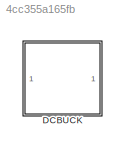
MODEL slx_4cc355a165fb
KIND model
CONFIG AbsTol = auto
CONFIG EnableMultiTasking = off
CONFIG FixedStep = auto
CONFIG MaxStep = auto
CONFIG MinStep = auto
CONFIG RelTol = 1e-3
CONFIG SampleTimeConstraint = Unconstrained
CONFIG SolverName = VariableStepAuto
CONFIG StartTime = 0.0
CONFIG StopTime = 10.0
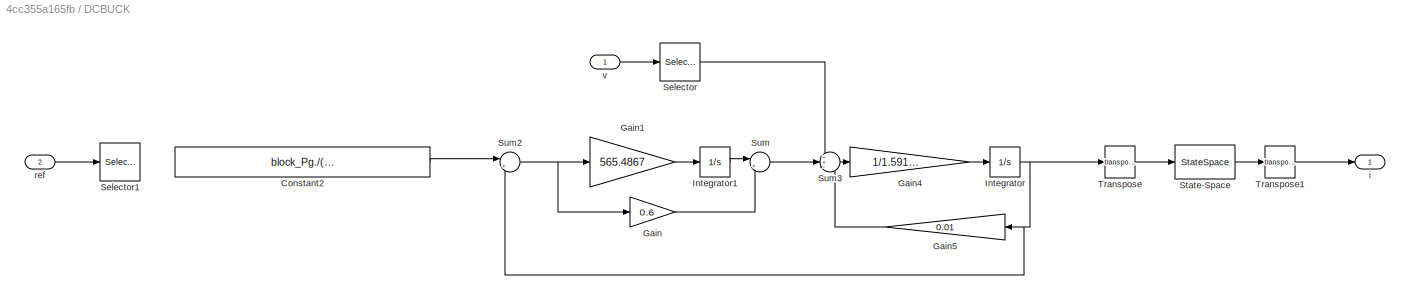
BLOCK [SubSystem] DCBUCK
BLOCK [Constant] DCBUCK/Constant2
  Value = block_Pg./(DC.v(block_buses)*Sb)
  VectorParams1D = off
BLOCK [Gain] DCBUCK/Gain
  Gain = 0.6
BLOCK [Gain] DCBUCK/Gain1
  Gain = 565.4867
BLOCK [Gain] DCBUCK/Gain4
  Gain = 1/1.5915e-04
BLOCK [Gain] DCBUCK/Gain5
  Gain = 0.01
  NameLocation = top
BLOCK [Integrator] DCBUCK/Integrator
  InitialCondition = Grid_DCop_DCBUCK.op.States(1).x'
BLOCK [Integrator] DCBUCK/Integrator1
  InitialCondition = Grid_DCop_DCBUCK.op.States(2).x'
BLOCK [Selector] DCBUCK/Selector
  IndexOptions = Index vector (dialog)
  Indices = block_buses
  InputPortWidth = DC.Nbuses
  OutputSizes = 1
BLOCK [Selector] DCBUCK/Selector1
  Commented = on
  IndexOptions = Index vector (dialog)
  Indices = [1 3]
  InputPortWidth = 3
  OutputSizes = 1
BLOCK [StateSpace] DCBUCK/State-Space
  A = []
  B = []
  C = []
  D = block_toM
  InitialCondition = 0
  ParameterTunability = Optimized
BLOCK [Sum] DCBUCK/Sum
  Inputs = |++
BLOCK [Sum] DCBUCK/Sum2
  Inputs = |+-
BLOCK [Sum] DCBUCK/Sum3
  Inputs = ++-
BLOCK [Math] DCBUCK/Transpose
  Operator = transpose
BLOCK [Math] DCBUCK/Transpose1
  Operator = transpose
BLOCK [Outport] DCBUCK/i
BLOCK [Inport] DCBUCK/ref
  Port = 2
BLOCK [Inport] DCBUCK/v
LINE DCBUCK/Constant2:1 -> DCBUCK/Sum2:1
LINE DCBUCK/Gain1:1 -> DCBUCK/Integrator1:1
LINE DCBUCK/Gain4:1 -> DCBUCK/Integrator:1
LINE DCBUCK/Gain5:1 -> DCBUCK/Sum3:3
LINE DCBUCK/Gain:1 -> DCBUCK/Sum:2
LINE DCBUCK/Integrator1:1 -> DCBUCK/Sum:1
NET DCBUCK/Integrator:1 -> DCBUCK/Gain5:1, DCBUCK/Sum2:2, DCBUCK/Transpose:1
LINE DCBUCK/Selector:1 -> DCBUCK/Sum3:1
LINE DCBUCK/State-Space:1 -> DCBUCK/Transpose1:1
NET DCBUCK/Sum2:1 -> DCBUCK/Gain1:1, DCBUCK/Gain:1
LINE DCBUCK/Sum3:1 -> DCBUCK/Gain4:1
LINE DCBUCK/Sum:1 -> DCBUCK/Sum3:2
LINE DCBUCK/Transpose1:1 -> DCBUCK/i:1
LINE DCBUCK/Transpose:1 -> DCBUCK/State-Space:1
LINE DCBUCK/ref:1 -> DCBUCK/Selector1:1
LINE DCBUCK/v:1 -> DCBUCK/Selector:1
note: NET lines group one-source signal fan-out (src -> all destinations, sorted); 1:1 wires keep LINE
